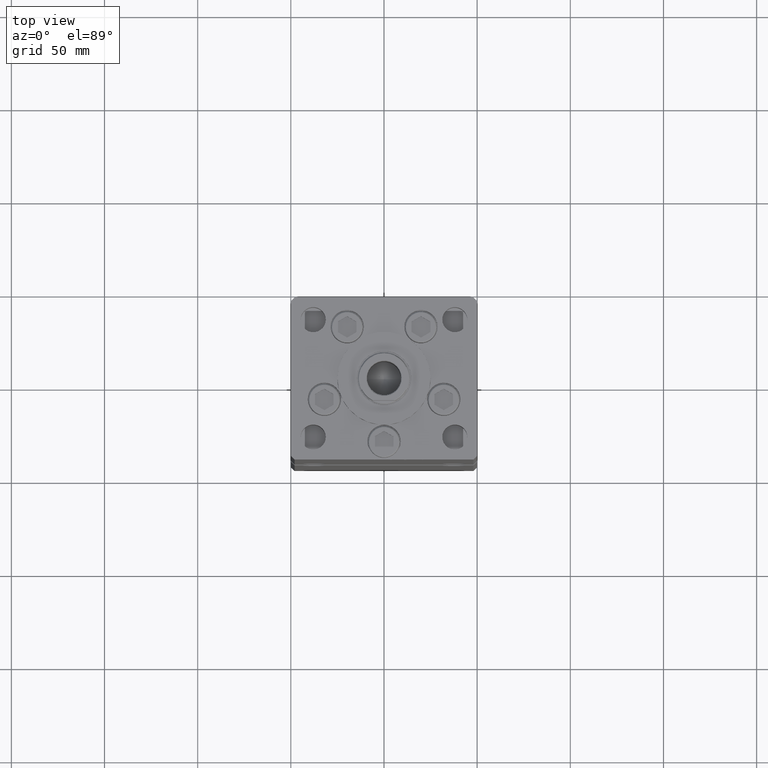
[diagram: clean part render]
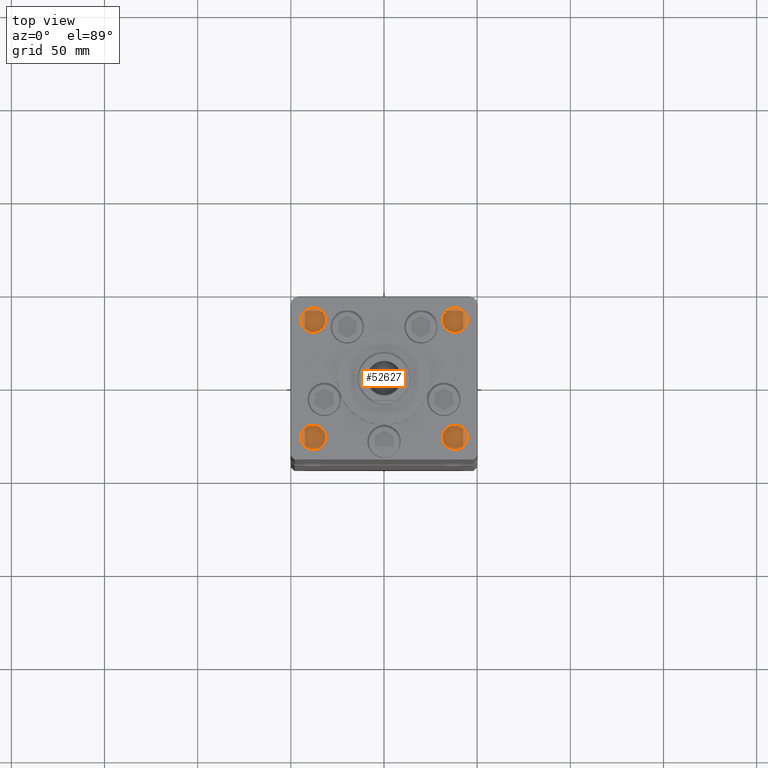
[diagram: same view with one face highlighted and labeled with its STEP entity id]
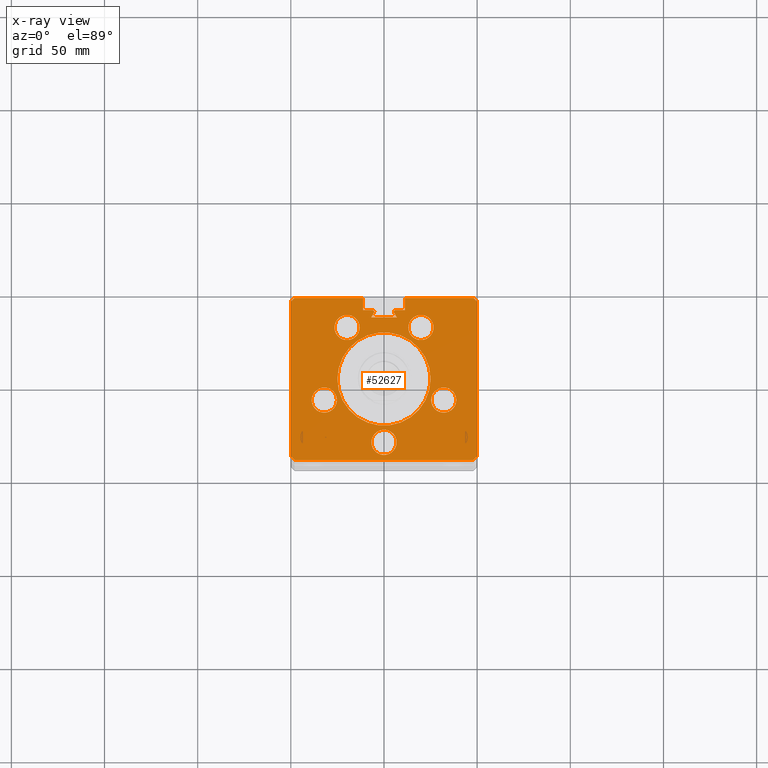
[diagram: x-ray of the same camera — body ghosted, the highlighted face saturated]
A machine part, top view. The second image highlights one B-rep face of the part: STEP entity #52627.
The next image is the same camera in x-ray: the body ghosted, the highlighted face saturated — about 0% of this face is hidden behind the body in this view.
In plain terms, the highlighted planar face has unit normal (0, 0, -1).
Its self-contained STEP definition (entity closure, byte-faithful):
#156 = VERTEX_POINT ( 'NONE', #16887 ) ;
#190 = LINE ( 'NONE', #36988, #42686 ) ;
#257 = ORIENTED_EDGE ( 'NONE', *, *, #12837, .F. ) ;
#305 = VERTEX_POINT ( 'NONE', #3690 ) ;
#726 = CIRCLE ( 'NONE', #6743, 6.749999999999999112 ) ;
#1242 = VERTEX_POINT ( 'NONE', #22746 ) ;
#1279 = DIRECTION ( 'NONE',  ( 1.000000000000000000, 0.000000000000000000, 0.000000000000000000 ) ) ;
#1526 = LINE ( 'NONE', #8780, #20832 ) ;
#1573 = CARTESIAN_POINT ( 'NONE',  ( 26.57068048781373903, 27.62500000000000000, 318.5000000000000000 ) ) ;
#1878 = CARTESIAN_POINT ( 'NONE',  ( -32.05550741379015278, -11.33333333333334458, 318.5000000000000000 ) ) ;
#1888 = EDGE_CURVE ( 'NONE', #49152, #32203, #1526, .T. ) ;
#2195 = AXIS2_PLACEMENT_3D ( 'NONE', #19031, #26857, #35945 ) ;
#2639 = AXIS2_PLACEMENT_3D ( 'NONE', #42184, #49738, #5377 ) ;
#3155 = ORIENTED_EDGE ( 'NONE', *, *, #26537, .F. ) ;
#3574 = CARTESIAN_POINT ( 'NONE',  ( 32.05550741379015278, -11.33333333333334103, 318.5000000000000000 ) ) ;
#3690 = CARTESIAN_POINT ( 'NONE',  ( 50.00000000000001421, 41.49999999999999289, 318.5000000000000000 ) ) ;
#3787 = CIRCLE ( 'NONE', #9764, 6.749999999999999112 ) ;
#3804 = LINE ( 'NONE', #12389, #15790 ) ;
#3903 = CARTESIAN_POINT ( 'NONE',  ( 38.80550741379015278, -11.33333333333334103, 318.5000000000000000 ) ) ;
#4021 = ORIENTED_EDGE ( 'NONE', *, *, #35621, .F. ) ;
#4274 = DIRECTION ( 'NONE',  ( 1.000000000000000000, 0.000000000000000000, 0.000000000000000000 ) ) ;
#5208 = EDGE_CURVE ( 'NONE', #52711, #36328, #49317, .T. ) ;
#5349 = CIRCLE ( 'NONE', #44818, 25.00000000000000000 ) ;
#5377 = DIRECTION ( 'NONE',  ( 1.000000000000000000, 0.000000000000000000, 0.000000000000000000 ) ) ;
#5400 = LINE ( 'NONE', #9960, #6999 ) ;
#5721 = CARTESIAN_POINT ( 'NONE',  ( 49.99999999999998579, -41.49999999999999289, 318.5000000000000000 ) ) ;
#6098 = EDGE_CURVE ( 'NONE', #33531, #13409, #52373, .T. ) ;
#6216 = AXIS2_PLACEMENT_3D ( 'NONE', #33303, #17423, #21217 ) ;
#6377 = DIRECTION ( 'NONE',  ( 1.000000000000000000, 0.000000000000000000, 0.000000000000000000 ) ) ;
#6432 = DIRECTION ( 'NONE',  ( 0.000000000000000000, 0.000000000000000000, 1.000000000000000000 ) ) ;
#6597 = FACE_BOUND ( 'NONE', #33087, .T. ) ;
#6743 = AXIS2_PLACEMENT_3D ( 'NONE', #50430, #17101, #33499 ) ;
#6775 = VERTEX_POINT ( 'NONE', #11868 ) ;
#6837 = VERTEX_POINT ( 'NONE', #25302 ) ;
#6999 = VECTOR ( 'NONE', #46778, 1000.000000000000000 ) ;
#7116 = FACE_OUTER_BOUND ( 'NONE', #26468, .T. ) ;
#7166 = VERTEX_POINT ( 'NONE', #9344 ) ;
#7631 = EDGE_CURVE ( 'NONE', #17470, #33531, #51761, .T. ) ;
#7769 = CIRCLE ( 'NONE', #39498, 6.749999999999999112 ) ;
#8166 = CARTESIAN_POINT ( 'NONE',  ( 0.000000000000000000, 0.000000000000000000, 318.5000000000000000 ) ) ;
#8581 = CIRCLE ( 'NONE', #43755, 6.749999999999999112 ) ;
#8780 = CARTESIAN_POINT ( 'NONE',  ( 19.44653440471351757, 11.22746187336663404, 318.5000000000000000 ) ) ;
#8869 = CARTESIAN_POINT ( 'NONE',  ( 0.000000000000000000, 37.00000000000000000, 318.5000000000000000 ) ) ;
#9146 = DIRECTION ( 'NONE',  ( 0.000000000000000000, 1.000000000000000000, 0.000000000000000000 ) ) ;
#9314 = DIRECTION ( 'NONE',  ( 0.000000000000000000, 0.000000000000000000, 1.000000000000000000 ) ) ;
#9344 = CARTESIAN_POINT ( 'NONE',  ( -6.183333333333996151, 37.00000000000000000, 318.5000000000000000 ) ) ;
#9520 = CARTESIAN_POINT ( 'NONE',  ( -26.57068048781373903, 27.62499999999999645, 318.5000000000000000 ) ) ;
#9553 = EDGE_CURVE ( 'NONE', #32203, #11113, #23227, .T. ) ;
#9764 = AXIS2_PLACEMENT_3D ( 'NONE', #38754, #23430, #19119 ) ;
#9960 = CARTESIAN_POINT ( 'NONE',  ( -11.24999999999999645, 43.50000000000000000, 318.5000000000000000 ) ) ;
#10031 = LINE ( 'NONE', #17560, #30019 ) ;
#10488 = EDGE_LOOP ( 'NONE', ( #27938, #46201 ) ) ;
#10545 = EDGE_CURVE ( 'NONE', #30102, #47358, #190, .T. ) ;
#10597 = ORIENTED_EDGE ( 'NONE', *, *, #13589, .T. ) ;
#10640 = CARTESIAN_POINT ( 'NONE',  ( -50.00000000000001421, 41.49999999999999289, 318.5000000000000000 ) ) ;
#10909 = LINE ( 'NONE', #35100, #21031 ) ;
#11113 = VERTEX_POINT ( 'NONE', #42147 ) ;
#11729 = ORIENTED_EDGE ( 'NONE', *, *, #35046, .T. ) ;
#11868 = CARTESIAN_POINT ( 'NONE',  ( -48.00000000000000711, 43.50000000000000000, 318.5000000000000000 ) ) ;
#11892 = CARTESIAN_POINT ( 'NONE',  ( -11.24999999999999645, 37.00000000000000000, 318.5000000000000000 ) ) ;
#12044 = ORIENTED_EDGE ( 'NONE', *, *, #43912, .F. ) ;
#12066 = CIRCLE ( 'NONE', #42090, 25.00000000000000000 ) ;
#12154 = EDGE_CURVE ( 'NONE', #36433, #16617, #726, .T. ) ;
#12288 = VERTEX_POINT ( 'NONE', #29681 ) ;
#12368 = CARTESIAN_POINT ( 'NONE',  ( 48.00000000000000711, 43.50000000000000000, 318.5000000000000000 ) ) ;
#12389 = CARTESIAN_POINT ( 'NONE',  ( 11.24999999999999645, 0.000000000000000000, 318.5000000000000000 ) ) ;
#12451 = VERTEX_POINT ( 'NONE', #9520 ) ;
#12560 = ORIENTED_EDGE ( 'NONE', *, *, #22085, .T. ) ;
#12837 = EDGE_CURVE ( 'NONE', #7166, #15742, #34211, .T. ) ;
#12884 = VERTEX_POINT ( 'NONE', #24090 ) ;
#13409 = VERTEX_POINT ( 'NONE', #17539 ) ;
#13589 = EDGE_CURVE ( 'NONE', #37574, #26073, #21523, .T. ) ;
#13633 = VECTOR ( 'NONE', #9146, 1000.000000000000000 ) ;
#13792 = DIRECTION ( 'NONE',  ( -1.000000000000000000, 0.000000000000000000, 0.000000000000000000 ) ) ;
#13845 = EDGE_CURVE ( 'NONE', #35468, #305, #50406, .T. ) ;
#14095 = DIRECTION ( 'NONE',  ( 1.000000000000000000, 0.000000000000000000, 0.000000000000000000 ) ) ;
#14634 = DIRECTION ( 'NONE',  ( 1.000000000000000000, 0.000000000000000000, 0.000000000000000000 ) ) ;
#14904 = VERTEX_POINT ( 'NONE', #38501 ) ;
#15015 = CARTESIAN_POINT ( 'NONE',  ( 6.183333333333996151, 36.06666666666599497, 318.5000000000000000 ) ) ;
#15054 = LINE ( 'NONE', #23387, #51626 ) ;
#15181 = FACE_BOUND ( 'NONE', #10488, .T. ) ;
#15541 = DIRECTION ( 'NONE',  ( 1.000000000000000000, 0.000000000000000000, 0.000000000000000000 ) ) ;
#15709 = CARTESIAN_POINT ( 'NONE',  ( 6.750000000000000888, -34.00000000000000000, 318.5000000000000000 ) ) ;
#15742 = VERTEX_POINT ( 'NONE', #39377 ) ;
#15765 = ORIENTED_EDGE ( 'NONE', *, *, #34564, .F. ) ;
#15790 = VECTOR ( 'NONE', #36578, 1000.000000000000000 ) ;
#16088 = ORIENTED_EDGE ( 'NONE', *, *, #32312, .F. ) ;
#16214 = DIRECTION ( 'NONE',  ( -0.000000000000000000, 0.000000000000000000, 1.000000000000000000 ) ) ;
#16617 = VERTEX_POINT ( 'NONE', #3903 ) ;
#16675 = CIRCLE ( 'NONE', #17510, 0.9333333333339999260 ) ;
#16723 = EDGE_CURVE ( 'NONE', #6775, #17470, #10031, .T. ) ;
#16844 = DIRECTION ( 'NONE',  ( 0.4999999999999987788, -0.8660254037844392627, 0.000000000000000000 ) ) ;
#16887 = CARTESIAN_POINT ( 'NONE',  ( 11.24999999999998934, 43.50000000000000000, 318.5000000000000000 ) ) ;
#16927 = EDGE_CURVE ( 'NONE', #16617, #36433, #8581, .T. ) ;
#17101 = DIRECTION ( 'NONE',  ( 0.000000000000000000, 0.000000000000000000, 1.000000000000000000 ) ) ;
#17321 = EDGE_LOOP ( 'NONE', ( #31433, #35936 ) ) ;
#17423 = DIRECTION ( 'NONE',  ( 0.000000000000000000, 0.000000000000000000, 1.000000000000000000 ) ) ;
#17470 = VERTEX_POINT ( 'NONE', #19108 ) ;
#17510 = AXIS2_PLACEMENT_3D ( 'NONE', #22725, #49677, #14634 ) ;
#17539 = CARTESIAN_POINT ( 'NONE',  ( -47.99999999999998579, -43.50000000000000000, 318.5000000000000000 ) ) ;
#17560 = CARTESIAN_POINT ( 'NONE',  ( -48.00000000000000711, 43.50000000000000000, 318.5000000000000000 ) ) ;
#17851 = EDGE_CURVE ( 'NONE', #44546, #44111, #7769, .T. ) ;
#18041 = ORIENTED_EDGE ( 'NONE', *, *, #44299, .F. ) ;
#18389 = ORIENTED_EDGE ( 'NONE', *, *, #10545, .T. ) ;
#18465 = ORIENTED_EDGE ( 'NONE', *, *, #12154, .F. ) ;
#18506 = CARTESIAN_POINT ( 'NONE',  ( 2.081899558550500280E-15, -34.00000000000000000, 318.5000000000000000 ) ) ;
#18670 = VECTOR ( 'NONE', #46613, 1000.000000000000000 ) ;
#18674 = CARTESIAN_POINT ( 'NONE',  ( 48.00000000000000711, 43.50000000000000000, 318.5000000000000000 ) ) ;
#18679 = DIRECTION ( 'NONE',  ( 0.000000000000000000, 0.000000000000000000, -1.000000000000000000 ) ) ;
#18775 = DIRECTION ( 'NONE',  ( 1.000000000000000000, 0.000000000000000000, 0.000000000000000000 ) ) ;
#19031 = CARTESIAN_POINT ( 'NONE',  ( -19.82068048781374259, 27.62499999999999645, 318.5000000000000000 ) ) ;
#19108 = CARTESIAN_POINT ( 'NONE',  ( -50.00000000000001421, 41.49999999999999289, 318.5000000000000000 ) ) ;
#19119 = DIRECTION ( 'NONE',  ( 1.000000000000000000, 0.000000000000000000, 0.000000000000000000 ) ) ;
#19361 = EDGE_CURVE ( 'NONE', #12884, #1242, #12066, .T. ) ;
#19838 = DIRECTION ( 'NONE',  ( 1.000000000000000000, 0.000000000000000000, 0.000000000000000000 ) ) ;
#19997 = DIRECTION ( 'NONE',  ( 1.000000000000000000, 0.000000000000000000, 0.000000000000000000 ) ) ;
#20832 = VECTOR ( 'NONE', #16844, 1000.000000000000114 ) ;
#20943 = CARTESIAN_POINT ( 'NONE',  ( -49.99999999999998579, -41.49999999999999289, 318.5000000000000000 ) ) ;
#21031 = VECTOR ( 'NONE', #27317, 1000.000000000000000 ) ;
#21217 = DIRECTION ( 'NONE',  ( 1.000000000000000000, 0.000000000000000000, 0.000000000000000000 ) ) ;
#21232 = ORIENTED_EDGE ( 'NONE', *, *, #5208, .F. ) ;
#21523 = LINE ( 'NONE', #34138, #13633 ) ;
#21842 = CARTESIAN_POINT ( 'NONE',  ( 6.876153656360465050, 32.99999999999986500, 318.5000000000000000 ) ) ;
#22085 = EDGE_CURVE ( 'NONE', #7166, #37574, #29302, .T. ) ;
#22461 = FACE_BOUND ( 'NONE', #29904, .T. ) ;
#22522 = CIRCLE ( 'NONE', #6216, 6.749999999999999112 ) ;
#22725 = CARTESIAN_POINT ( 'NONE',  ( -6.183333333333996151, 36.06666666666599497, 318.5000000000000000 ) ) ;
#22746 = CARTESIAN_POINT ( 'NONE',  ( -25.00000000000000000, 0.000000000000000000, 318.5000000000000000 ) ) ;
#22835 = DIRECTION ( 'NONE',  ( 0.000000000000000000, 0.000000000000000000, -1.000000000000000000 ) ) ;
#22939 = EDGE_CURVE ( 'NONE', #52347, #12288, #50825, .T. ) ;
#22999 = CARTESIAN_POINT ( 'NONE',  ( 0.000000000000000000, 0.000000000000000000, 318.5000000000000000 ) ) ;
#23227 = LINE ( 'NONE', #30229, #18670 ) ;
#23260 = CARTESIAN_POINT ( 'NONE',  ( 49.99999999999998579, -41.49999999999999289, 318.5000000000000000 ) ) ;
#23387 = CARTESIAN_POINT ( 'NONE',  ( 50.00000000000001421, 41.49999999999999289, 318.5000000000000000 ) ) ;
#23430 = DIRECTION ( 'NONE',  ( 0.000000000000000000, 0.000000000000000000, 1.000000000000000000 ) ) ;
#23588 = AXIS2_PLACEMENT_3D ( 'NONE', #22999, #18679, #31057 ) ;
#24090 = CARTESIAN_POINT ( 'NONE',  ( 25.00000000000000000, 3.061616997868383043E-15, 318.5000000000000000 ) ) ;
#24152 = ORIENTED_EDGE ( 'NONE', *, *, #22939, .F. ) ;
#24260 = DIRECTION ( 'NONE',  ( 0.000000000000000000, 0.000000000000000000, 1.000000000000000000 ) ) ;
#24438 = CARTESIAN_POINT ( 'NONE',  ( 0.000000000000000000, 0.000000000000000000, 318.5000000000000000 ) ) ;
#25302 = CARTESIAN_POINT ( 'NONE',  ( -5.375042956467946276, 35.59999999999899245, 318.5000000000000000 ) ) ;
#25364 = ORIENTED_EDGE ( 'NONE', *, *, #26676, .F. ) ;
#25625 = AXIS2_PLACEMENT_3D ( 'NONE', #42917, #38890, #6377 ) ;
#26073 = VERTEX_POINT ( 'NONE', #40954 ) ;
#26137 = AXIS2_PLACEMENT_3D ( 'NONE', #45303, #35960, #15541 ) ;
#26157 = DIRECTION ( 'NONE',  ( -0.7071067811865474617, -0.7071067811865474617, 0.000000000000000000 ) ) ;
#26342 = ORIENTED_EDGE ( 'NONE', *, *, #39063, .F. ) ;
#26468 = EDGE_LOOP ( 'NONE', ( #12560, #10597, #3155, #44182, #40286, #41523, #11729, #53112, #25364, #39667, #18041, #30501, #18389, #26342, #49856, #40403, #51080, #46574, #257 ) ) ;
#26537 = EDGE_CURVE ( 'NONE', #6775, #26073, #5400, .T. ) ;
#26676 = EDGE_CURVE ( 'NONE', #305, #29968, #15054, .T. ) ;
#26782 = VECTOR ( 'NONE', #41331, 1000.000000000000114 ) ;
#26857 = DIRECTION ( 'NONE',  ( 0.000000000000000000, 0.000000000000000000, 1.000000000000000000 ) ) ;
#27317 = DIRECTION ( 'NONE',  ( 1.000000000000000000, 0.000000000000000000, 0.000000000000000000 ) ) ;
#27938 = ORIENTED_EDGE ( 'NONE', *, *, #17851, .F. ) ;
#28616 = EDGE_CURVE ( 'NONE', #1242, #12884, #5349, .T. ) ;
#29302 = LINE ( 'NONE', #8869, #32755 ) ;
#29681 = CARTESIAN_POINT ( 'NONE',  ( 13.07068048781374081, 27.62500000000000000, 318.5000000000000000 ) ) ;
#29694 = CARTESIAN_POINT ( 'NONE',  ( -11.24999999999999645, 43.50000000000000000, 318.5000000000000000 ) ) ;
#29705 = CIRCLE ( 'NONE', #46008, 0.9333333333339999260 ) ;
#29904 = EDGE_LOOP ( 'NONE', ( #34719, #18465 ) ) ;
#29968 = VERTEX_POINT ( 'NONE', #23260 ) ;
#30019 = VECTOR ( 'NONE', #33961, 1000.000000000000000 ) ;
#30102 = VERTEX_POINT ( 'NONE', #32916 ) ;
#30229 = CARTESIAN_POINT ( 'NONE',  ( 0.000000000000000000, 32.99999999999986500, 318.5000000000000000 ) ) ;
#30431 = CARTESIAN_POINT ( 'NONE',  ( 5.375042956467946276, 35.59999999999899245, 318.5000000000000000 ) ) ;
#30501 = ORIENTED_EDGE ( 'NONE', *, *, #51022, .T. ) ;
#30563 = CARTESIAN_POINT ( 'NONE',  ( -19.82068048781374259, 27.62499999999999645, 318.5000000000000000 ) ) ;
#31057 = DIRECTION ( 'NONE',  ( -1.000000000000000000, 0.000000000000000000, -0.000000000000000000 ) ) ;
#31433 = ORIENTED_EDGE ( 'NONE', *, *, #28616, .F. ) ;
#31692 = DIRECTION ( 'NONE',  ( 0.7071067811865474617, -0.7071067811865474617, 0.000000000000000000 ) ) ;
#31940 = CARTESIAN_POINT ( 'NONE',  ( -6.749999999999997335, -34.00000000000000000, 318.5000000000000000 ) ) ;
#32203 = VERTEX_POINT ( 'NONE', #21842 ) ;
#32312 = EDGE_CURVE ( 'NONE', #12288, #52347, #3787, .T. ) ;
#32755 = VECTOR ( 'NONE', #35177, 1000.000000000000000 ) ;
#32916 = CARTESIAN_POINT ( 'NONE',  ( 11.24999999999999645, 37.00000000000000000, 318.5000000000000000 ) ) ;
#33023 = CARTESIAN_POINT ( 'NONE',  ( -19.44653440471351757, 11.22746187336663404, 318.5000000000000000 ) ) ;
#33087 = EDGE_LOOP ( 'NONE', ( #21232, #15765 ) ) ;
#33303 = CARTESIAN_POINT ( 'NONE',  ( -32.05550741379015278, -11.33333333333334458, 318.5000000000000000 ) ) ;
#33499 = DIRECTION ( 'NONE',  ( 1.000000000000000000, 0.000000000000000000, 0.000000000000000000 ) ) ;
#33531 = VERTEX_POINT ( 'NONE', #20943 ) ;
#33961 = DIRECTION ( 'NONE',  ( -0.7071067811865487940, -0.7071067811865463515, 0.000000000000000000 ) ) ;
#34138 = CARTESIAN_POINT ( 'NONE',  ( -11.24999999999999645, 0.000000000000000000, 318.5000000000000000 ) ) ;
#34211 = CIRCLE ( 'NONE', #25625, 0.9333333333339999260 ) ;
#34440 = CIRCLE ( 'NONE', #37009, 6.749999999999999112 ) ;
#34564 = EDGE_CURVE ( 'NONE', #36328, #52711, #49329, .T. ) ;
#34719 = ORIENTED_EDGE ( 'NONE', *, *, #16927, .F. ) ;
#35046 = EDGE_CURVE ( 'NONE', #13409, #46287, #10909, .T. ) ;
#35100 = CARTESIAN_POINT ( 'NONE',  ( -47.99999999999998579, -43.50000000000000000, 318.5000000000000000 ) ) ;
#35177 = DIRECTION ( 'NONE',  ( -1.000000000000000000, 0.000000000000000000, 0.000000000000000000 ) ) ;
#35333 = FACE_BOUND ( 'NONE', #47824, .T. ) ;
#35468 = VERTEX_POINT ( 'NONE', #12368 ) ;
#35603 = FACE_BOUND ( 'NONE', #17321, .T. ) ;
#35621 = EDGE_CURVE ( 'NONE', #14904, #12451, #38186, .T. ) ;
#35936 = ORIENTED_EDGE ( 'NONE', *, *, #19361, .F. ) ;
#35945 = DIRECTION ( 'NONE',  ( 1.000000000000000000, 0.000000000000000000, 0.000000000000000000 ) ) ;
#35960 = DIRECTION ( 'NONE',  ( 0.000000000000000000, 0.000000000000000000, 1.000000000000000000 ) ) ;
#35987 = DIRECTION ( 'NONE',  ( -3.344045254895050973E-16, -1.000000000000000000, 0.000000000000000000 ) ) ;
#36029 = EDGE_LOOP ( 'NONE', ( #4021, #12044 ) ) ;
#36243 = CARTESIAN_POINT ( 'NONE',  ( -49.99999999999998579, -41.49999999999999289, 318.5000000000000000 ) ) ;
#36328 = VERTEX_POINT ( 'NONE', #31940 ) ;
#36433 = VERTEX_POINT ( 'NONE', #41583 ) ;
#36578 = DIRECTION ( 'NONE',  ( -0.000000000000000000, -1.000000000000000000, 0.000000000000000000 ) ) ;
#36988 = CARTESIAN_POINT ( 'NONE',  ( 0.000000000000000000, 37.00000000000000000, 318.5000000000000000 ) ) ;
#37009 = AXIS2_PLACEMENT_3D ( 'NONE', #30563, #9314, #1279 ) ;
#37166 = CARTESIAN_POINT ( 'NONE',  ( -25.30550741379015278, -11.33333333333334458, 318.5000000000000000 ) ) ;
#37574 = VERTEX_POINT ( 'NONE', #11892 ) ;
#38186 = CIRCLE ( 'NONE', #2195, 6.749999999999999112 ) ;
#38501 = CARTESIAN_POINT ( 'NONE',  ( -13.07068048781374259, 27.62499999999999645, 318.5000000000000000 ) ) ;
#38564 = PLANE ( 'NONE',  #23588 ) ;
#38754 = CARTESIAN_POINT ( 'NONE',  ( 19.82068048781374259, 27.62500000000000000, 318.5000000000000000 ) ) ;
#38890 = DIRECTION ( 'NONE',  ( 0.000000000000000000, 0.000000000000000000, -1.000000000000000000 ) ) ;
#39063 = EDGE_CURVE ( 'NONE', #49152, #47358, #29705, .T. ) ;
#39377 = CARTESIAN_POINT ( 'NONE',  ( -5.249999999999995559, 36.06666666666599497, 318.5000000000000000 ) ) ;
#39498 = AXIS2_PLACEMENT_3D ( 'NONE', #1878, #6432, #18775 ) ;
#39667 = ORIENTED_EDGE ( 'NONE', *, *, #13845, .F. ) ;
#40043 = VECTOR ( 'NONE', #43167, 1000.000000000000000 ) ;
#40156 = VECTOR ( 'NONE', #31692, 1000.000000000000114 ) ;
#40255 = VECTOR ( 'NONE', #47165, 1000.000000000000000 ) ;
#40286 = ORIENTED_EDGE ( 'NONE', *, *, #7631, .T. ) ;
#40403 = ORIENTED_EDGE ( 'NONE', *, *, #9553, .T. ) ;
#40954 = CARTESIAN_POINT ( 'NONE',  ( -11.24999999999999645, 43.50000000000000000, 318.5000000000000000 ) ) ;
#41331 = DIRECTION ( 'NONE',  ( 0.4999999999999987788, 0.8660254037844392627, 0.000000000000000000 ) ) ;
#41523 = ORIENTED_EDGE ( 'NONE', *, *, #6098, .T. ) ;
#41583 = CARTESIAN_POINT ( 'NONE',  ( 25.30550741379015278, -11.33333333333334103, 318.5000000000000000 ) ) ;
#41597 = LINE ( 'NONE', #33023, #26782 ) ;
#42090 = AXIS2_PLACEMENT_3D ( 'NONE', #8166, #16214, #19997 ) ;
#42147 = CARTESIAN_POINT ( 'NONE',  ( -6.876153656360465050, 32.99999999999986500, 318.5000000000000000 ) ) ;
#42184 = CARTESIAN_POINT ( 'NONE',  ( 19.82068048781374259, 27.62500000000000000, 318.5000000000000000 ) ) ;
#42218 = CARTESIAN_POINT ( 'NONE',  ( 6.183333333333996151, 37.00000000000000000, 318.5000000000000000 ) ) ;
#42686 = VECTOR ( 'NONE', #13792, 1000.000000000000000 ) ;
#42917 = CARTESIAN_POINT ( 'NONE',  ( -6.183333333333996151, 36.06666666666599497, 318.5000000000000000 ) ) ;
#43167 = DIRECTION ( 'NONE',  ( 3.344045254895050973E-16, -1.000000000000000000, 0.000000000000000000 ) ) ;
#43495 = DIRECTION ( 'NONE',  ( 0.000000000000000000, 0.000000000000000000, 1.000000000000000000 ) ) ;
#43755 = AXIS2_PLACEMENT_3D ( 'NONE', #3574, #24260, #48978 ) ;
#43912 = EDGE_CURVE ( 'NONE', #12451, #14904, #34440, .T. ) ;
#44111 = VERTEX_POINT ( 'NONE', #48802 ) ;
#44182 = ORIENTED_EDGE ( 'NONE', *, *, #16723, .T. ) ;
#44299 = EDGE_CURVE ( 'NONE', #156, #35468, #49855, .T. ) ;
#44546 = VERTEX_POINT ( 'NONE', #37166 ) ;
#44818 = AXIS2_PLACEMENT_3D ( 'NONE', #24438, #45124, #4274 ) ;
#45124 = DIRECTION ( 'NONE',  ( -0.000000000000000000, 0.000000000000000000, 1.000000000000000000 ) ) ;
#45276 = EDGE_CURVE ( 'NONE', #11113, #6837, #41597, .T. ) ;
#45303 = CARTESIAN_POINT ( 'NONE',  ( 2.081899558550500280E-15, -34.00000000000000000, 318.5000000000000000 ) ) ;
#46008 = AXIS2_PLACEMENT_3D ( 'NONE', #15015, #22835, #19838 ) ;
#46201 = ORIENTED_EDGE ( 'NONE', *, *, #46876, .F. ) ;
#46287 = VERTEX_POINT ( 'NONE', #51952 ) ;
#46568 = LINE ( 'NONE', #5721, #49305 ) ;
#46574 = ORIENTED_EDGE ( 'NONE', *, *, #51506, .F. ) ;
#46613 = DIRECTION ( 'NONE',  ( -1.000000000000000000, 0.000000000000000000, 0.000000000000000000 ) ) ;
#46778 = DIRECTION ( 'NONE',  ( 1.000000000000000000, 0.000000000000000000, 0.000000000000000000 ) ) ;
#46876 = EDGE_CURVE ( 'NONE', #44111, #44546, #22522, .T. ) ;
#47165 = DIRECTION ( 'NONE',  ( 0.7071067811865487940, -0.7071067811865463515, 0.000000000000000000 ) ) ;
#47358 = VERTEX_POINT ( 'NONE', #42218 ) ;
#47712 = FACE_BOUND ( 'NONE', #36029, .T. ) ;
#47824 = EDGE_LOOP ( 'NONE', ( #24152, #16088 ) ) ;
#48802 = CARTESIAN_POINT ( 'NONE',  ( -38.80550741379015278, -11.33333333333334458, 318.5000000000000000 ) ) ;
#48978 = DIRECTION ( 'NONE',  ( 1.000000000000000000, 0.000000000000000000, 0.000000000000000000 ) ) ;
#49152 = VERTEX_POINT ( 'NONE', #30431 ) ;
#49305 = VECTOR ( 'NONE', #26157, 1000.000000000000114 ) ;
#49317 = CIRCLE ( 'NONE', #26137, 6.749999999999999112 ) ;
#49329 = CIRCLE ( 'NONE', #51048, 6.749999999999999112 ) ;
#49677 = DIRECTION ( 'NONE',  ( 0.000000000000000000, 0.000000000000000000, -1.000000000000000000 ) ) ;
#49738 = DIRECTION ( 'NONE',  ( 0.000000000000000000, 0.000000000000000000, 1.000000000000000000 ) ) ;
#49855 = LINE ( 'NONE', #29694, #49903 ) ;
#49856 = ORIENTED_EDGE ( 'NONE', *, *, #1888, .T. ) ;
#49903 = VECTOR ( 'NONE', #14095, 1000.000000000000000 ) ;
#50406 = LINE ( 'NONE', #18674, #40255 ) ;
#50430 = CARTESIAN_POINT ( 'NONE',  ( 32.05550741379015278, -11.33333333333334103, 318.5000000000000000 ) ) ;
#50825 = CIRCLE ( 'NONE', #2639, 6.749999999999999112 ) ;
#51022 = EDGE_CURVE ( 'NONE', #156, #30102, #3804, .T. ) ;
#51048 = AXIS2_PLACEMENT_3D ( 'NONE', #18506, #43495, #52085 ) ;
#51080 = ORIENTED_EDGE ( 'NONE', *, *, #45276, .T. ) ;
#51506 = EDGE_CURVE ( 'NONE', #15742, #6837, #16675, .T. ) ;
#51626 = VECTOR ( 'NONE', #35987, 1000.000000000000000 ) ;
#51761 = LINE ( 'NONE', #10640, #40043 ) ;
#51793 = EDGE_CURVE ( 'NONE', #29968, #46287, #46568, .T. ) ;
#51952 = CARTESIAN_POINT ( 'NONE',  ( 47.99999999999998579, -43.50000000000000000, 318.5000000000000000 ) ) ;
#52085 = DIRECTION ( 'NONE',  ( 1.000000000000000000, 0.000000000000000000, 0.000000000000000000 ) ) ;
#52347 = VERTEX_POINT ( 'NONE', #1573 ) ;
#52373 = LINE ( 'NONE', #36243, #40156 ) ;
#52627 = ADVANCED_FACE ( 'NONE', ( #15181, #6597, #22461, #35333, #47712, #7116, #35603 ), #38564, .F. ) ;
#52711 = VERTEX_POINT ( 'NONE', #15709 ) ;
#53112 = ORIENTED_EDGE ( 'NONE', *, *, #51793, .F. ) ;